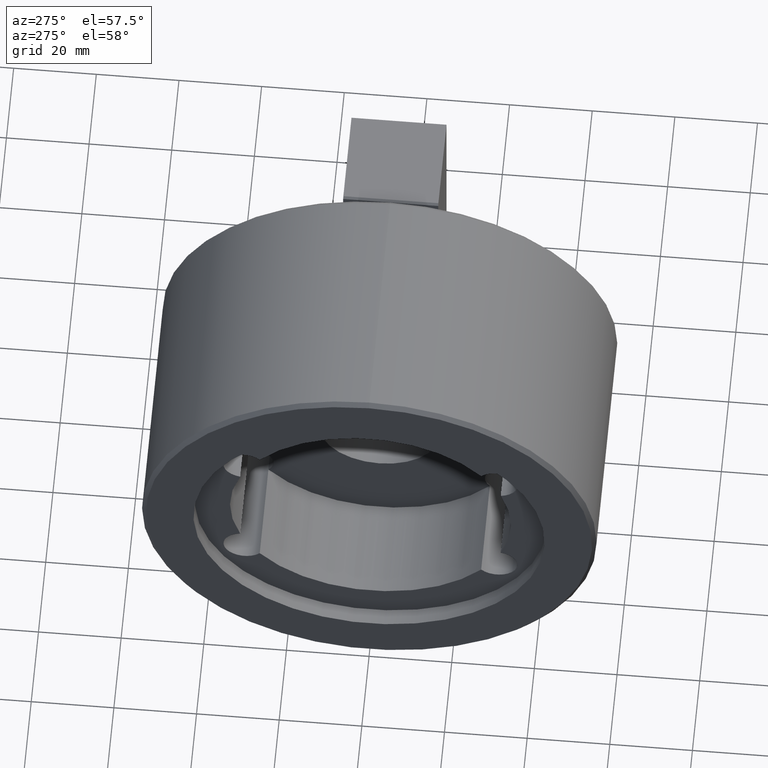
[diagram: clean part render]
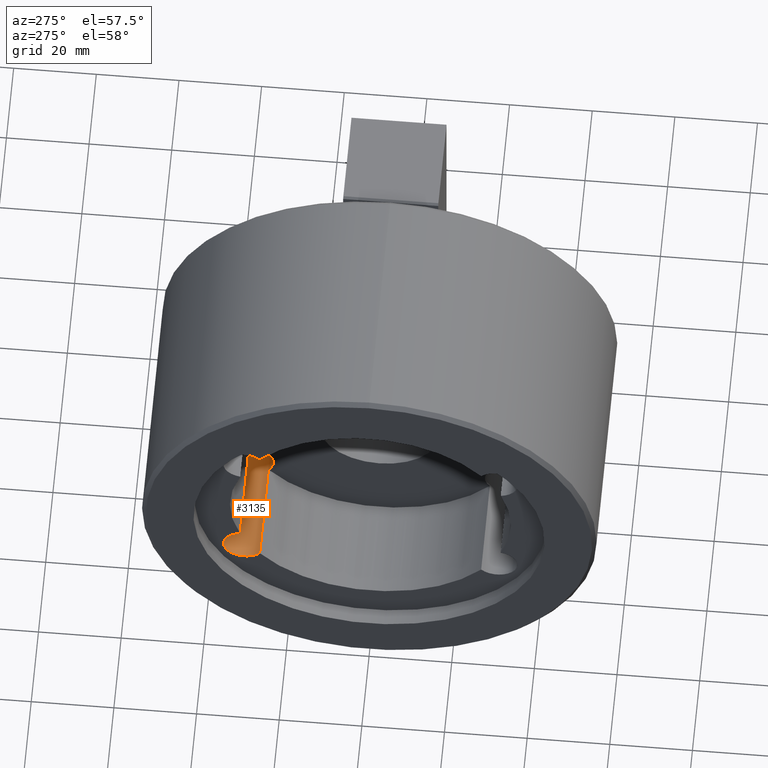
[diagram: same view with one face highlighted and labeled with its STEP entity id]
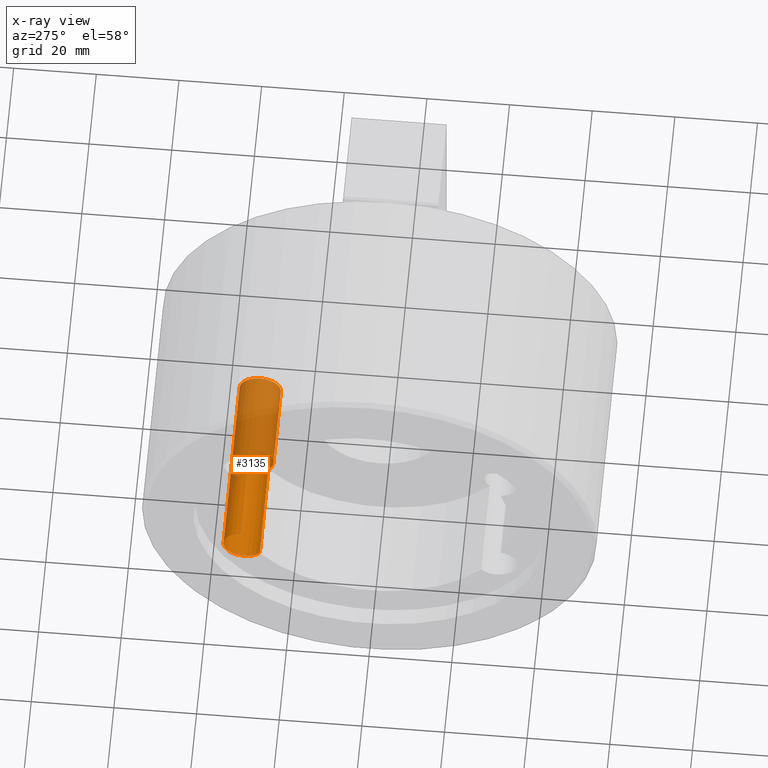
[diagram: x-ray of the same camera — body ghosted, the highlighted face saturated]
A machine part, auxiliary view. The second image highlights one B-rep face of the part: STEP entity #3135.
The next image is the same camera in x-ray: the body ghosted, the highlighted face saturated — about 51% of this face is hidden behind the body in this view.
In plain terms, the highlighted cylindrical surface (bore or boss wall) has radius 5 mm, axis along (-1, 0, -0).
Its self-contained STEP definition (entity closure, byte-faithful):
#148=LINE('',#5882,#401);
#150=LINE('',#5896,#403);
#401=VECTOR('',#4988,1000.);
#403=VECTOR('',#5006,1000.);
#623=CYLINDRICAL_SURFACE('',#4533,5.);
#1044=ORIENTED_EDGE('',*,*,#1763,.T.);
#1045=ORIENTED_EDGE('',*,*,#1764,.F.);
#1046=ORIENTED_EDGE('',*,*,#1768,.T.);
#1047=ORIENTED_EDGE('',*,*,#1757,.T.);
#1048=ORIENTED_EDGE('',*,*,#1795,.F.);
#1757=EDGE_CURVE('',#2167,#2168,#148,.T.);
#1763=EDGE_CURVE('',#2168,#2172,#2444,.T.);
#1764=EDGE_CURVE('',#2173,#2172,#150,.T.);
#1768=EDGE_CURVE('',#2173,#2167,#2447,.T.);
#1795=EDGE_CURVE('',#2193,#2193,#2468,.T.);
#2167=VERTEX_POINT('',#5879);
#2168=VERTEX_POINT('',#5881);
#2172=VERTEX_POINT('',#5893);
#2173=VERTEX_POINT('',#5897);
#2193=VERTEX_POINT('',#5982);
#2444=CIRCLE('',#4493,5.);
#2447=CIRCLE('',#4498,5.);
#2468=CIRCLE('',#4534,5.);
#2622=EDGE_LOOP('',(#1044,#1045,#1046,#1047));
#2623=EDGE_LOOP('',(#1048));
#2880=FACE_BOUND('',#2622,.T.);
#2881=FACE_BOUND('',#2623,.T.);
#3135=ADVANCED_FACE('',(#2880,#2881),#623,.F.);
#4493=AXIS2_PLACEMENT_3D('',#5894,#5002,#5003);
#4498=AXIS2_PLACEMENT_3D('',#5904,#5014,#5015);
#4533=AXIS2_PLACEMENT_3D('',#5980,#5084,#5085);
#4534=AXIS2_PLACEMENT_3D('',#5981,#5086,#5087);
#4988=DIRECTION('',(1.,0.,1.28379282215539E-32));
#5002=DIRECTION('',(-1.,0.,-1.28379282215539E-32));
#5003=DIRECTION('',(-1.28379282215539E-32,0.,1.));
#5006=DIRECTION('',(1.,0.,1.28379282215539E-32));
#5014=DIRECTION('',(-1.,0.,-1.28379282215539E-32));
#5015=DIRECTION('',(-1.28379282215539E-32,0.,1.));
#5084=DIRECTION('',(-1.,0.,-1.28379282215539E-32));
#5085=DIRECTION('',(1.28379282215539E-32,0.,-1.));
#5086=DIRECTION('',(-1.,0.,-1.28379282215539E-32));
#5087=DIRECTION('',(-1.28379282215539E-32,0.,1.));
#5879=CARTESIAN_POINT('',(-56.2262345679012,26.7955330314281,-20.9284354303337));
#5881=CARTESIAN_POINT('',(-32.2262345679012,26.7955330314281,-20.9284354303337));
#5882=CARTESIAN_POINT('',(-94.9142745736617,26.7955330314281,-20.9284354303337));
#5893=CARTESIAN_POINT('',(-32.2262345679012,31.5223232598454,-12.7413945979949));
#5894=CARTESIAN_POINT('',(-32.2262345679012,30.5706967535907,-17.65));
#5896=CARTESIAN_POINT('',(-94.9142745736617,31.5223232598454,-12.7413945979949));
#5897=CARTESIAN_POINT('',(-56.2262345679012,31.5223232598454,-12.7413945979949));
#5904=CARTESIAN_POINT('',(-56.2262345679012,30.5706967535907,-17.65));
#5980=CARTESIAN_POINT('',(-178.102314579422,30.5706967535907,-17.65));
#5981=CARTESIAN_POINT('',(-11.7262345679013,30.5706967535907,-17.65));
#5982=CARTESIAN_POINT('',(-11.7262345679013,30.5706967535907,-12.65));